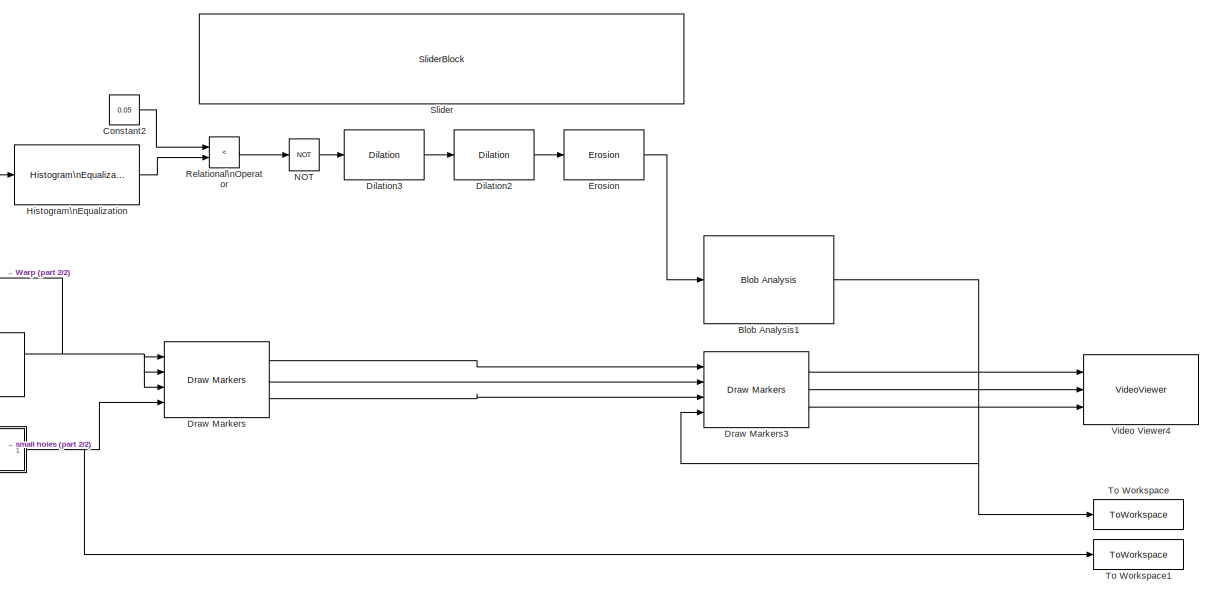
[diagram: root canvas - part 1/2, right side, full height]
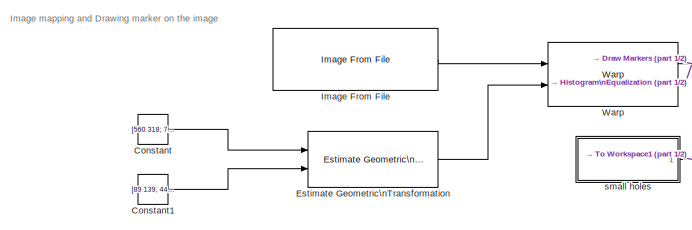
[diagram: root canvas - part 2/2, bottom left region]
MODEL smallholes
KIND model
BLOCK [Reference] Blob Analysis1  REF=visionstatistics/Blob Analysis
  LockScale = off
  MultiThreadCoSim = auto
  Ports = [1, 1]
  SID = 70
  SourceBlock = visionstatistics/Blob Analysis
  SourceProductBaseCode = VP
  SourceType = Blob Analysis
  Tag = vipblks_row_conv
  accumFracLength = 0
  accumMode = Binary point scaling
  accumWordLength = 32
  angle = off
  area = off
  bBox = off
  centroid = on
  conn = 4
  eccentricity = off
  equivDiameterSq = off
  excludeBorderBlob = off
  extent = off
  fillValues = -1
  firstCoeffFracLength = 14
  firstCoeffMode = Binary point scaling
  firstCoeffWordLength = 16
  isCount = off
  isFill = on
  isLabel = off
  isOutVarDim = off
  majorAxis = off
  maxArea = 40
  maxBlobs = 254
  memoryFracLength = 16
  memoryMode = Same as product output
  memoryWordLength = 32
  minArea = 6
  minorAxis = off
  outDT = double
  outputFracLength = 16
  outputMode = Binary point scaling
  outputWordLength = 32
  overflowMode = off
  perimeter = off
  prodOutputFracLength = 16
  prodOutputMode = Binary point scaling
  prodOutputWordLength = 32
  roundingMode = Floor
  secondCoeffFracLength = 16
  secondCoeffMode = Binary point scaling
  secondCoeffWordLength = 32
  useMaxArea = on
  useMinArea = on
  warnIfNumBlobsExceeded = on
BLOCK [Constant] Constant
  SID = 26
  Value = [560 318; 783 237; 822 559; 595 525]\n
BLOCK [Constant] Constant1
  SID = 27
  Value = [89 139; 448 28; 443 529; 137 464]
BLOCK [Constant] Constant2
  SID = 34
  Value = 0.05
BLOCK [Reference] Dilation2  REF=visionmorphops/Dilation
  MultiThreadCoSim = auto
  Ports = [1, 1]
  SID = 66
  SourceBlock = visionmorphops/Dilation
  SourceProductBaseCode = VP
  SourceType = Dilation
  nhoodsrc = Specify via dialog
  strel = [1 1 1; 1 1 1; 1 1 1]
BLOCK [Reference] Dilation3  REF=visionmorphops/Dilation
  MultiThreadCoSim = auto
  Ports = [1, 1]
  SID = 93
  SourceBlock = visionmorphops/Dilation
  SourceProductBaseCode = VP
  SourceType = Dilation
  nhoodsrc = Specify via dialog
  strel = [1 1; 1 1]
BLOCK [Reference] Draw Markers  REF=visiontextngfix/Draw Markers
  LockScale = off
  MultiThreadCoSim = auto
  Ports = [4, 3]
  SID = 23
  SourceBlock = visiontextngfix/Draw Markers
  SourceProductBaseCode = VP
  SourceType = Draw Markers
  accumFracLength = 14
  accumMode = Same as product output
  accumWordLength = 32
  antialiasing = off
  color = [255 0 0]
  display = User-specified value
  fill = off
  fillClrSource = Specify via dialog
  imagePorts = Separate color signals
  inType = Obsolete
  intensity = 200
  memoryFracLength = 15
  memoryMode = Specify word length
  memoryWordLength = 16
  opacity = 0.6
  overflowMode = off
  prodOutputFracLength = 14
  prodOutputMode = Binary point scaling
  prodOutputWordLength = 32
  roundingMode = Floor
  shape = Circle
  size = 3
  viewport = Entire image
BLOCK [Reference] Draw Markers3  REF=visiontextngfix/Draw Markers
  LockScale = off
  MultiThreadCoSim = auto
  Ports = [4, 3]
  SID = 71
  SourceBlock = visiontextngfix/Draw Markers
  SourceProductBaseCode = VP
  SourceType = Draw Markers
  accumFracLength = 14
  accumMode = Same as product output
  accumWordLength = 32
  antialiasing = off
  color = [0 255 0]
  display = User-specified value
  fill = off
  fillClrSource = Specify via dialog
  imagePorts = Separate color signals
  inType = Obsolete
  intensity = 200
  memoryFracLength = 15
  memoryMode = Specify word length
  memoryWordLength = 16
  opacity = 0.6
  overflowMode = off
  prodOutputFracLength = 14
  prodOutputMode = Binary point scaling
  prodOutputWordLength = 32
  roundingMode = Floor
  shape = X-mark
  size = 3
  viewport = Entire image
BLOCK [Reference] Erosion  REF=visionmorphops/Erosion
  MultiThreadCoSim = auto
  Ports = [1, 1]
  SID = 101
  SourceBlock = visionmorphops/Erosion
  SourceProductBaseCode = VP
  SourceType = Erosion
  nhoodsrc = Specify via dialog
  strel = strel('square',3)
BLOCK [Reference] Estimate Geometric\nTransformation  REF=visiongeotforms/Estimate Geometric\nTransformation
  MultiThreadCoSim = auto
  Ports = [2, 1]
  SID = 22
  SourceBlock = visiongeotforms/Estimate Geometric\nTransformation
  SourceProductBaseCode = VP
  SourceType = Estimate Geometric Transformation
  algMethod = Random Sample Consensus (RANSAC)
  desiredConfidence = 99
  distanceAlg = 2.5
  distanceGeo = 2.5
  isOutputInlier = off
  isRandomSampling = on
  isRefineTForm = off
  isReleaseMode = on
  isStopSampling = off
  isVarSizeAllowed = on
  maxSampleNum = 1000
  numMethod = Specified value
  outDT4IntInput = Obsolete10a
  outDT4IntInputActive = Single
  percentStop = 75
  sampleNum = 500
  tformType = Projective
BLOCK [Reference] Histogram\nEqualization  REF=visionanalysis/Histogram\nEqualization
  MultiThreadCoSim = auto
  Ports = [1, 1]
  SID = 33
  SourceBlock = visionanalysis/Histogram\nEqualization
  SourceProductBaseCode = VP
  SourceType = Histogram Equalization
  hist = ones(1,64)
  numbins = 64
  specify = Uniform
  src = Specify via dialog
BLOCK [Reference] Image From File  REF=visionsources/Image From File
  FileName = <path>
  FractionLength = 15
  FractionLengthMode = User-defined
  ImageDataType = double
  OutPortLabels = R|G|B
  Ports = [0, 1]
  RTWMemSecDataConstants = Inherit from model
  RTWMemSecDataInternal = Inherit from model
  RTWMemSecDataParameters = Inherit from model
  RTWMemSecFuncExecute = Inherit from model
  RTWMemSecFuncInitTerm = Inherit from model
  SID = 20
  Signed = on
  SourceBlock = visionsources/Image From File
  SourceProductBaseCode = VP
  SourceType = Image From File
  Tag = vipblks_nd
  Ts = inf
  WordLength = 16
  imagePorts = One multidimensional signal
  sdImageDataType = uint(8)
BLOCK [Logic] NOT
  AllPortsSameDT = off
  IconShape = distinctive
  Operator = NOT
  OutDataTypeStr = boolean
  Ports = [1, 1]
  SID = 41
BLOCK [RelationalOperator] Relational\nOperator
  InputSameDT = off
  Operator = <
  OutDataTypeStr = boolean
  Ports = [2, 1]
  RndMeth = Simplest
  SID = 35
BLOCK [SliderBlock] Slider
  BindingPersistence = DataTag0
  SID = 39
  ScaleMax = 1
BLOCK [ToWorkspace] To Workspace
  FixptAsFi = on
  MaxDataPoints = inf
  Ports = [1]
  SID = 129
  SampleTime = -1
  VariableName = DetectedHole
BLOCK [ToWorkspace] To Workspace1
  FixptAsFi = on
  MaxDataPoints = inf
  Ports = [1]
  SID = 130
  SampleTime = -1
  VariableName = GivenHole
BLOCK [VideoViewer] Video Viewer4
  FigPos = [672 819 933 608]
  Ports = [3]
  SID = 72
  ScopeSpecificationString = vipscopes.VideoViewerScopeCfg('CurrentConfiguration', extmgr.ConfigurationSet(extmgr.Configuration('Core','General UI',true),extmgr.Configuration('Core','Source UI',true),extmgr.Configuration('Sources','WiredSimulink',true),extmgr.Configuration('Visuals','Video',true),extmgr.Configuration('Tools','Image Navigation Tools',true),extmgr.Configuration('Tools','Image Tool',true),extmgr.Configuration('T...<+75ch>
  colormapValue = gray(256)
  imagePorts = separate color signals
BLOCK [Reference] Warp  REF=visiongeotforms/Warp
  BackgroundFillValue = 0
  InterpolationMethod = Bicubic
  OutputImagePosition = [ 1, 1, 750, 750]
  OutputImagePositionSource = Custom
  Ports = [2, 2]
  ROIInputPort = off
  ROIValidityOutputPort = on
  SID = 21
  SimulateUsing = Interpreted execution
  SourceBlock = visiongeotforms/Warp
  SourceProductBaseCode = VP
  SourceType = vision.internal.blocks.Warp
  TransformMatrix = eye( 3 )
  TransformMatrixSource = Input port
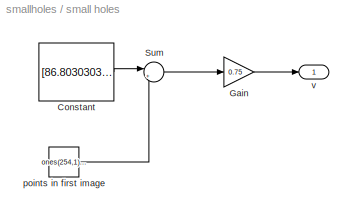
BLOCK [SubSystem] small holes
  Ports = [0, 1]
  RequestExecContextInheritance = off
  SID = 10
  TreatAsAtomicUnit = on
BLOCK [Constant] small holes/Constant
  SID = 16
  Value = [86.8030303030303	86.8030303030303	227.219696969697	227.219696969697	271.897727272727	297.428030303030	374.018939393939	374.018939393939	374.018939393939	374.018939393939	374.018939393939	374.018939393939	412.314393939394	488.905303030303	527.200757575758	527.200757575758	527.200757575758	527.200757575758	527.200757575758	527.200757575758	533.583333333333	508.053030303030	482.522727272727	456.9924...<+7956ch>
BLOCK [Gain] small holes/Gain
  Gain = 0.75
  SID = 17
BLOCK [Sum] small holes/Sum
  Inputs = |+-
  Ports = [2, 1]
  SID = 18
BLOCK [Constant] small holes/points in first image
  OutDataTypeStr = single
  SID = 19
  Value = ones(254,1)*[0 250]
  VectorParams1D = off
BLOCK [Outport] small holes/v
  SID = 12
ANNOTATION (root): \n \n Image mapping and Drawing marker on the image
NET Blob Analysis1:1 -> Draw Markers3:4, To Workspace:1
LINE Constant1:1 -> Estimate Geometric\nTransformation:2
LINE Constant2:1 -> Relational\nOperator:1
LINE Constant:1 -> Estimate Geometric\nTransformation:1
LINE Dilation2:1 -> Erosion:1
LINE Dilation3:1 -> Dilation2:1
LINE Draw Markers3:1 -> Video Viewer4:1
LINE Draw Markers3:2 -> Video Viewer4:2
LINE Draw Markers3:3 -> Video Viewer4:3
LINE Draw Markers:1 -> Draw Markers3:1
LINE Draw Markers:2 -> Draw Markers3:2
LINE Draw Markers:3 -> Draw Markers3:3
LINE Erosion:1 -> Blob Analysis1:1
LINE Estimate Geometric\nTransformation:1 -> Warp:2
LINE Histogram\nEqualization:1 -> Relational\nOperator:2
LINE Image From File:1 -> Warp:1
LINE NOT:1 -> Dilation3:1
LINE Relational\nOperator:1 -> NOT:1
NET Warp:1 -> Draw Markers:1, Draw Markers:2, Draw Markers:3, Histogram\nEqualization:1
LINE small holes/Constant:1 -> small holes/Sum:1
LINE small holes/Gain:1 -> small holes/v:1
LINE small holes/Sum:1 -> small holes/Gain:1
LINE small holes/points in first image:1 -> small holes/Sum:2
NET small holes:1 -> Draw Markers:4, To Workspace1:1
note: NET lines group one-source signal fan-out (src -> all destinations, sorted); 1:1 wires keep LINE
note: 1 file-system path scrubbed to <path> (not preserved elsewhere — flat text is the only slx artifact)
